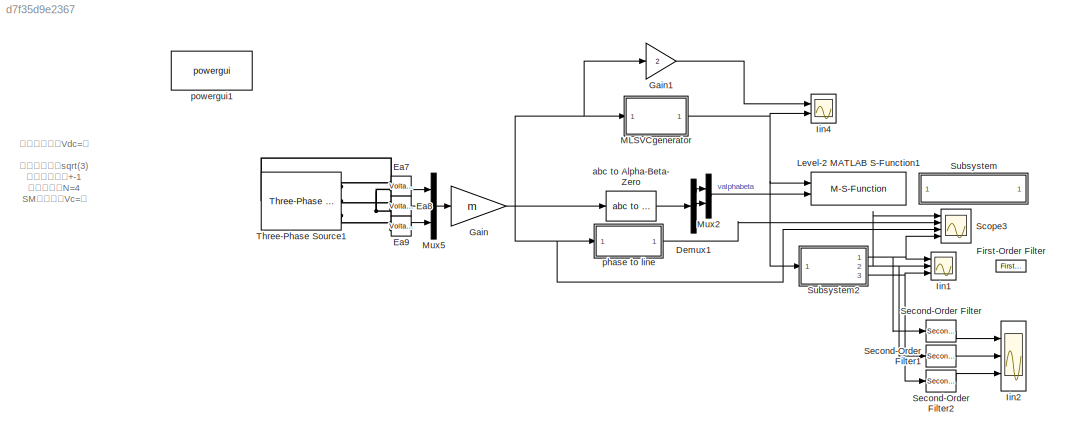
MODEL slx_d7f35d9e2367
KIND model
CONFIG AbsTol = auto
CONFIG EnableMultiTasking = on
CONFIG FixedStep = auto
CONFIG MaxStep = auto
CONFIG MinStep = auto
CONFIG RelTol = 1e-3
CONFIG SampleTimeConstraint = Unconstrained
CONFIG Solver = ode45
CONFIG SolverName = ode45
CONFIG StartTime = 0.0
CONFIG StopTime = 0.02
BLOCK [Demux] Demux1
  DisplayOption = bar
  Outputs = 3
  Ports = [1, 3]
BLOCK [Reference] Ea7  REF=powerlib/Measurements/Voltage Measurement
  Ports = [0, 1, 0, 0, 0, 2]
  SourceBlock = powerlib/Measurements/Voltage Measurement
  SourceProductBaseCode = PS
  SourceProductName = Simscape Power Systems
  SourceType = Voltage Measurement
BLOCK [Reference] Ea8  REF=powerlib/Measurements/Voltage Measurement
  Ports = [0, 1, 0, 0, 0, 2]
  SourceBlock = powerlib/Measurements/Voltage Measurement
  SourceProductBaseCode = PS
  SourceProductName = Simscape Power Systems
  SourceType = Voltage Measurement
BLOCK [Reference] Ea9  REF=powerlib/Measurements/Voltage Measurement
  Ports = [0, 1, 0, 0, 0, 2]
  SourceBlock = powerlib/Measurements/Voltage Measurement
  SourceProductBaseCode = PS
  SourceProductName = Simscape Power Systems
  SourceType = Voltage Measurement
BLOCK [Reference] First-Order Filter  REF=powerlib_meascontrol/Filters/First-Order
Filter
  Commented = on
  Ports = [1, 1]
  SourceBlock = powerlib_meascontrol/Filters/First-Order\nFilter
  SourceProductBaseCode = PS
  SourceProductName = Simscape Power Systems
  SourceType = First-Order Filter
BLOCK [Gain] Gain
  Gain = m
  OutDataTypeStr = Inherit: Inherit via internal rule
  ParamDataTypeStr = Inherit: Inherit via internal rule
  SaturateOnIntegerOverflow = off
BLOCK [Gain] Gain1
  Commented = on
  Gain = 2
  OutDataTypeStr = Inherit: Inherit via internal rule
  ParamDataTypeStr = Inherit: Inherit via internal rule
  SaturateOnIntegerOverflow = off
BLOCK [Scope] Iin1
  NumInputPorts = 3
  Ports = [3]
  ScopeSpecificationString = Simulink.scopes.TimeScopeBlockCfg('CurrentConfiguration', extmgr.ConfigurationSet(extmgr.Configuration('Core','General UI',true),extmgr.Configuration('Core','Source UI',true),extmgr.Configuration('Sources','WiredSimulink',true,'DataLoggingVariableName','SVCoutput','DataLoggingSaveFormat','StructureWithTime','DataLoggingDecimation','1','DataLoggingDecimateData',true,'DataLogging',true),extmgr.Confi...<+2285ch>
BLOCK [Scope] Iin2
  NumInputPorts = 3
  Ports = [3]
  ScopeSpecificationString = Simulink.scopes.TimeScopeBlockCfg('CurrentConfiguration', extmgr.ConfigurationSet(extmgr.Configuration('Core','General UI',true),extmgr.Configuration('Core','Source UI',true),extmgr.Configuration('Sources','WiredSimulink',true,'DataLoggingVariableName','SVCoutput_Filtered','DataLoggingSaveFormat','StructureWithTime','DataLoggingDecimation','1','DataLoggingDecimateData',true,'DataLogging',true),ext...<+2323ch>
BLOCK [Scope] Iin4
  Commented = on
  NumInputPorts = 2
  Ports = [2]
  ScopeSpecificationString = Simulink.scopes.TimeScopeBlockCfg('CurrentConfiguration', extmgr.ConfigurationSet(extmgr.Configuration('Core','General UI',true),extmgr.Configuration('Core','Source UI',true),extmgr.Configuration('Sources','WiredSimulink',true,'DataLoggingVariableName','pdpwmoutput','DataLoggingSaveFormat','StructureWithTime','DataLoggingDecimation','1','DataLoggingDecimateData',true),extmgr.Configuration('Visuals...<+2844ch>
BLOCK [M-S-Function] Level-2 MATLAB S-Function1
  FunctionName = PlotSpaceVector
  Parameters = level, vdc, rate, normalized, plot, hexagon, sw, disabled
  Ports = [2]
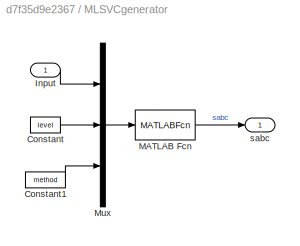
BLOCK [SubSystem] MLSVCgenerator
  Ports = [1, 1]
  RequestExecContextInheritance = off
  Variant = off
BLOCK [Constant] MLSVCgenerator/Constant
  Value = level
BLOCK [Constant] MLSVCgenerator/Constant1
  Value = method
BLOCK [Inport] MLSVCgenerator/Input
  IconDisplay = Port number
BLOCK [MATLABFcn] MLSVCgenerator/MATLAB Fcn
  MATLABFcn = MLSVC_m
  OutputSignalType = real
  Ports = [1, 1]
BLOCK [Mux] MLSVCgenerator/Mux
  DisplayOption = bar
  Inputs = 3
  Ports = [3, 1]
BLOCK [Outport] MLSVCgenerator/sabc
  IconDisplay = Port number
BLOCK [Mux] Mux2
  DisplayOption = bar
  Inputs = 2
  Ports = [2, 1]
BLOCK [Mux] Mux5
  DisplayOption = bar
  Inputs = 3
  Ports = [3, 1]
BLOCK [Scope] Scope3
  NumInputPorts = 4
  Ports = [4]
  ScopeSpecificationString = Simulink.scopes.TimeScopeBlockCfg('CurrentConfiguration', extmgr.ConfigurationSet(extmgr.Configuration('Core','General UI',true),extmgr.Configuration('Core','Source UI',true),extmgr.Configuration('Sources','WiredSimulink',true,'DataLoggingVariableName','sa','DataLogging',true,'DataLoggingSaveFormat','StructureWithTime'),extmgr.Configuration('Visuals','Time Domain',true,'SerializedDisplays',{struct...<+1928ch>
BLOCK [Reference] Second-Order Filter  REF=powerlib_meascontrol/Filters/Second-Order
Filter
  Ports = [1, 1]
  SourceBlock = powerlib_meascontrol/Filters/Second-Order\nFilter
  SourceProductBaseCode = PS
  SourceProductName = Simscape Power Systems
  SourceType = Second-Order Filter
BLOCK [Reference] Second-Order Filter1  REF=powerlib_meascontrol/Filters/Second-Order
Filter
  Ports = [1, 1]
  SourceBlock = powerlib_meascontrol/Filters/Second-Order\nFilter
  SourceProductBaseCode = PS
  SourceProductName = Simscape Power Systems
  SourceType = Second-Order Filter
BLOCK [Reference] Second-Order Filter2  REF=powerlib_meascontrol/Filters/Second-Order
Filter
  Ports = [1, 1]
  SourceBlock = powerlib_meascontrol/Filters/Second-Order\nFilter
  SourceProductBaseCode = PS
  SourceProductName = Simscape Power Systems
  SourceType = Second-Order Filter
BLOCK [SubSystem] Subsystem
  AttributesFormatString = \n
  OpenFcn = open('<path>')
  Ports = []
  RequestExecContextInheritance = off
  Variant = off
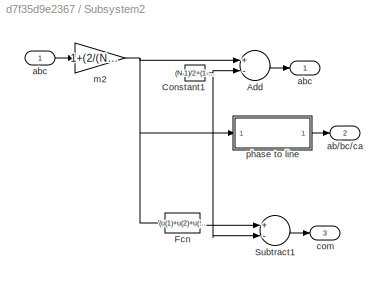
BLOCK [SubSystem] Subsystem2
  Ports = [1, 3]
  RequestExecContextInheritance = off
  Variant = off
BLOCK [Sum] Subsystem2/Add
  InputSameDT = off
  Inputs = +-
  OutDataTypeStr = Inherit: Inherit via internal rule
  Ports = [2, 1]
  SaturateOnIntegerOverflow = off
BLOCK [Constant] Subsystem2/Constant1
  Value = (N-1)/2+(1-(N-1)/2)*normal
BLOCK [Fcn] Subsystem2/Fcn
  Expr = (u(1)+u(2)+u(3))/3
BLOCK [Sum] Subsystem2/Subtract1
  InputSameDT = off
  Inputs = +-
  OutDataTypeStr = Inherit: Inherit via internal rule
  Ports = [2, 1]
  SaturateOnIntegerOverflow = off
BLOCK [Outport] Subsystem2/ab//bc//ca
  IconDisplay = Port number
  Port = 2
BLOCK [Outport] Subsystem2/abc
  IconDisplay = Port number
BLOCK [Inport] Subsystem2/abc 
  IconDisplay = Port number
BLOCK [Outport] Subsystem2/com
  IconDisplay = Port number
  Port = 3
BLOCK [Gain] Subsystem2/m2
  Gain = 1+(2/(N-1)-1)*normal
  OutDataTypeStr = Inherit: Inherit via internal rule
  ParamDataTypeStr = Inherit: Inherit via internal rule
  SaturateOnIntegerOverflow = off
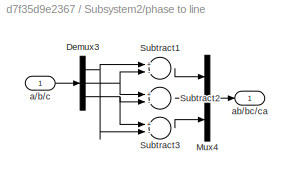
BLOCK [SubSystem] Subsystem2/phase to line
  Ports = [1, 1]
  RequestExecContextInheritance = off
  Variant = off
BLOCK [Demux] Subsystem2/phase to line/Demux3
  DisplayOption = bar
  Outputs = 3
  Ports = [1, 3]
BLOCK [Mux] Subsystem2/phase to line/Mux4
  DisplayOption = bar
  Inputs = 3
  Ports = [3, 1]
BLOCK [Sum] Subsystem2/phase to line/Subtract1
  InputSameDT = off
  Inputs = +-
  OutDataTypeStr = Inherit: Inherit via internal rule
  Ports = [2, 1]
  SaturateOnIntegerOverflow = off
BLOCK [Sum] Subsystem2/phase to line/Subtract2
  InputSameDT = off
  Inputs = +-
  OutDataTypeStr = Inherit: Inherit via internal rule
  Ports = [2, 1]
  SaturateOnIntegerOverflow = off
BLOCK [Sum] Subsystem2/phase to line/Subtract3
  InputSameDT = off
  Inputs = +-
  OutDataTypeStr = Inherit: Inherit via internal rule
  Ports = [2, 1]
  SaturateOnIntegerOverflow = off
BLOCK [Inport] Subsystem2/phase to line/a//b//c
  IconDisplay = Port number
BLOCK [Outport] Subsystem2/phase to line/ab//bc//ca
  IconDisplay = Port number
BLOCK [Reference] Three-Phase Source1  REF=powerlib/Electrical
Sources/Three-Phase Source
  Ports = [0, 0, 0, 0, 0, 1, 3]
  SourceBlock = powerlib/Electrical\nSources/Three-Phase Source
  SourceProductBaseCode = PS
  SourceProductName = Simscape Power Systems
  SourceType = Three-Phase Source
BLOCK [Reference] abc to Alpha-Beta-Zero  REF=powerlib_meascontrol/Transformations/abc to
Alpha-Beta-Zero
  Ports = [1, 1]
  SourceBlock = powerlib_meascontrol/Transformations/abc to\nAlpha-Beta-Zero
  SourceProductBaseCode = PS
  SourceProductName = Simscape Power Systems
  SourceType = abc to Alpha-Beta-Zero Transformation
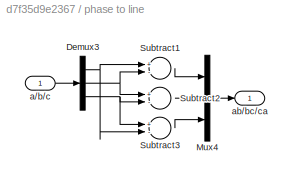
BLOCK [SubSystem] phase to line
  Ports = [1, 1]
  RequestExecContextInheritance = off
  Variant = off
BLOCK [Demux] phase to line/Demux3
  DisplayOption = bar
  Outputs = 3
  Ports = [1, 3]
BLOCK [Mux] phase to line/Mux4
  DisplayOption = bar
  Inputs = 3
  Ports = [3, 1]
BLOCK [Sum] phase to line/Subtract1
  InputSameDT = off
  Inputs = +-
  OutDataTypeStr = Inherit: Inherit via internal rule
  Ports = [2, 1]
  SaturateOnIntegerOverflow = off
BLOCK [Sum] phase to line/Subtract2
  InputSameDT = off
  Inputs = +-
  OutDataTypeStr = Inherit: Inherit via internal rule
  Ports = [2, 1]
  SaturateOnIntegerOverflow = off
BLOCK [Sum] phase to line/Subtract3
  InputSameDT = off
  Inputs = +-
  OutDataTypeStr = Inherit: Inherit via internal rule
  Ports = [2, 1]
  SaturateOnIntegerOverflow = off
BLOCK [Inport] phase to line/a//b//c
  IconDisplay = Port number
BLOCK [Outport] phase to line/ab//bc//ca
  IconDisplay = Port number
BLOCK [Reference] powergui1  REF=powerlib/powergui
  Ports = []
  Priority = 1
  SourceBlock = powerlib/powergui
  SourceProductBaseCode = PS
  SourceProductName = Simscape Power Systems
  SourceType = PSB option menu block
ANNOTATION (root): 直流母线电压Vdc=？ 输出线电压：sqrt(3) 输出相电压：+-1 桥臂子模块N=4 SM电容电压Vc=？ 开关频率fs=5kHz
LINE Demux1:1 -> Mux2:1
LINE Demux1:2 -> Mux2:2
LINE Ea7:1 -> Mux5:1
LINE Ea8:1 -> Mux5:2
LINE Ea9:1 -> Mux5:3
LINE Gain1:1 -> Iin4:1
NET Gain:1 -> Gain1:1, MLSVCgenerator:1, Scope3:3, abc to Alpha-Beta-Zero:1, phase to line:1
LINE MLSVCgenerator/Constant1:1 -> MLSVCgenerator/Mux:3
LINE MLSVCgenerator/Constant:1 -> MLSVCgenerator/Mux:2
LINE MLSVCgenerator/Input:1 -> MLSVCgenerator/Mux:1
LINE MLSVCgenerator/MATLAB Fcn:1 -> MLSVCgenerator/sabc:1
LINE MLSVCgenerator/Mux:1 -> MLSVCgenerator/MATLAB Fcn:1
NET MLSVCgenerator:1 -> Iin4:2, Level-2 MATLAB S-Function1:1, Subsystem2:1
LINE Mux2:1 -> Level-2 MATLAB S-Function1:2
LINE Mux5:1 -> Gain:1
LINE Second-Order Filter1:1 -> Iin2:2
LINE Second-Order Filter2:1 -> Iin2:3
LINE Second-Order Filter:1 -> Iin2:1
LINE Subsystem2/Add:1 -> Subsystem2/abc:1
NET Subsystem2/Constant1:1 -> Subsystem2/Add:2, Subsystem2/Subtract1:2
LINE Subsystem2/Fcn:1 -> Subsystem2/Subtract1:1
LINE Subsystem2/Subtract1:1 -> Subsystem2/com:1
LINE Subsystem2/abc :1 -> Subsystem2/m2:1
NET Subsystem2/m2:1 -> Subsystem2/Add:1, Subsystem2/Fcn:1, Subsystem2/phase to line:1
NET Subsystem2/phase to line/Demux3:1 -> Subsystem2/phase to line/Subtract1:1, Subsystem2/phase to line/Subtract3:2
NET Subsystem2/phase to line/Demux3:2 -> Subsystem2/phase to line/Subtract1:2, Subsystem2/phase to line/Subtract2:1
NET Subsystem2/phase to line/Demux3:3 -> Subsystem2/phase to line/Subtract2:2, Subsystem2/phase to line/Subtract3:1
LINE Subsystem2/phase to line/Mux4:1 -> Subsystem2/phase to line/ab//bc//ca:1
LINE Subsystem2/phase to line/Subtract1:1 -> Subsystem2/phase to line/Mux4:1
LINE Subsystem2/phase to line/Subtract2:1 -> Subsystem2/phase to line/Mux4:2
LINE Subsystem2/phase to line/Subtract3:1 -> Subsystem2/phase to line/Mux4:3
LINE Subsystem2/phase to line/a//b//c:1 -> Subsystem2/phase to line/Demux3:1
LINE Subsystem2/phase to line:1 -> Subsystem2/ab//bc//ca:1
NET Subsystem2:1 -> Iin1:1, Scope3:4, Second-Order Filter:1
NET Subsystem2:2 -> Iin1:2, Scope3:1, Second-Order Filter1:1
NET Subsystem2:3 -> Iin1:3, Second-Order Filter2:1
LINE abc to Alpha-Beta-Zero:1 -> Demux1:1
NET phase to line/Demux3:1 -> phase to line/Subtract1:1, phase to line/Subtract3:2
NET phase to line/Demux3:2 -> phase to line/Subtract1:2, phase to line/Subtract2:1
NET phase to line/Demux3:3 -> phase to line/Subtract2:2, phase to line/Subtract3:1
LINE phase to line/Mux4:1 -> phase to line/ab//bc//ca:1
LINE phase to line/Subtract1:1 -> phase to line/Mux4:1
LINE phase to line/Subtract2:1 -> phase to line/Mux4:2
LINE phase to line/Subtract3:1 -> phase to line/Mux4:3
LINE phase to line/a//b//c:1 -> phase to line/Demux3:1
LINE phase to line:1 -> Scope3:2
PLINE Ea7:LConn1 -- Three-Phase Source1:RConn1
PNET net1: Ea7:LConn2 -- Ea8:LConn2 -- Ea9:LConn2 -- Three-Phase Source1:LConn1
PLINE Ea8:LConn1 -- Three-Phase Source1:RConn2
PLINE Ea9:LConn1 -- Three-Phase Source1:RConn3
note: NET lines group one-source signal fan-out (src -> all destinations, sorted); 1:1 wires keep LINE; PNET lines group multi-terminal physical nets as a canonical sorted terminal list (undirected conserving connections); 2-terminal nets keep the pairwise PLINE form
note: 1 file-system path scrubbed to <path> (not preserved elsewhere — flat text is the only slx artifact)
